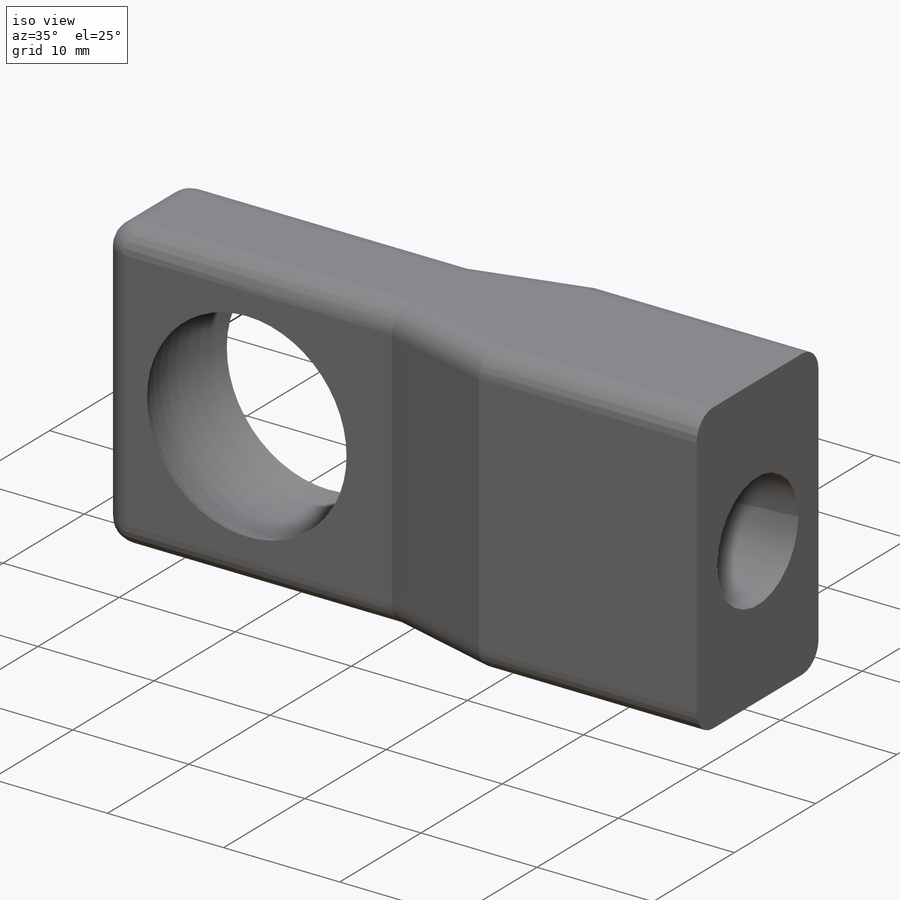
[diagram: iso view]
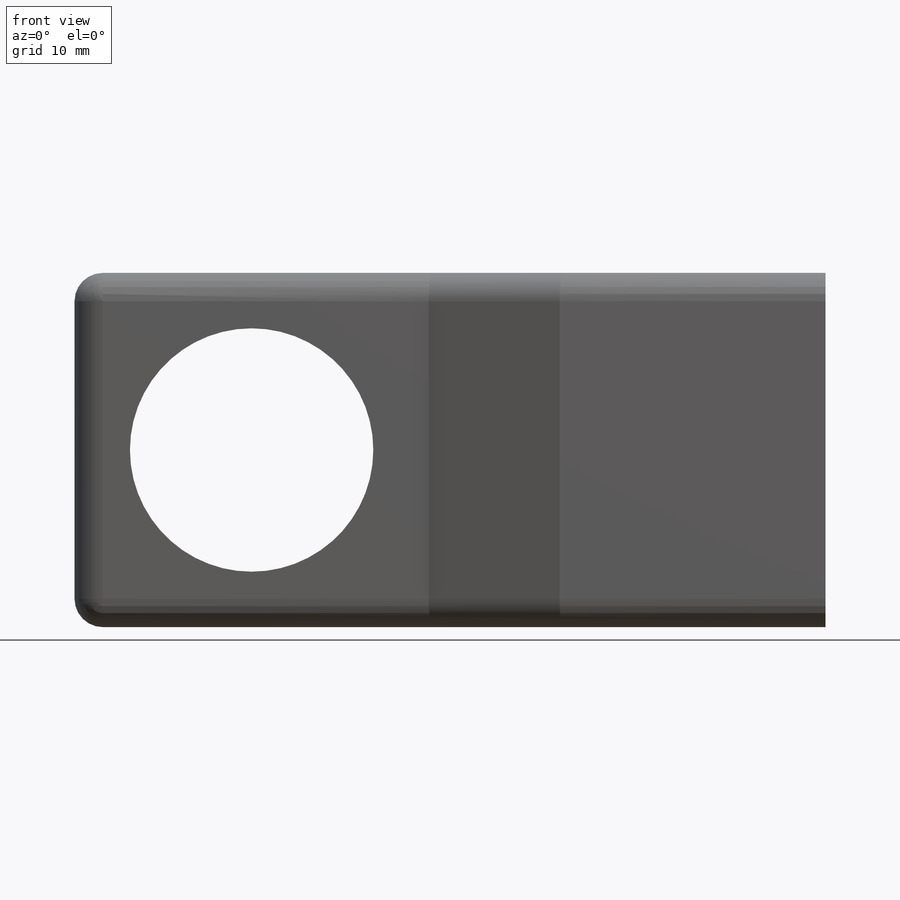
[diagram: front view]
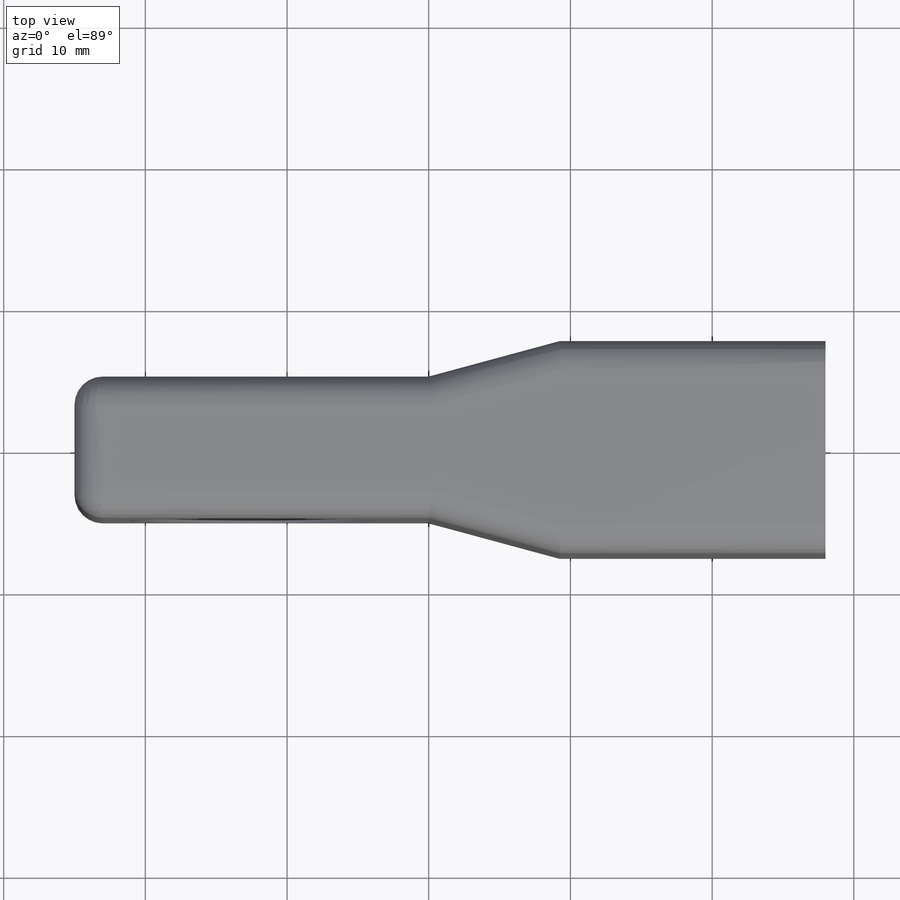
[diagram: top view]
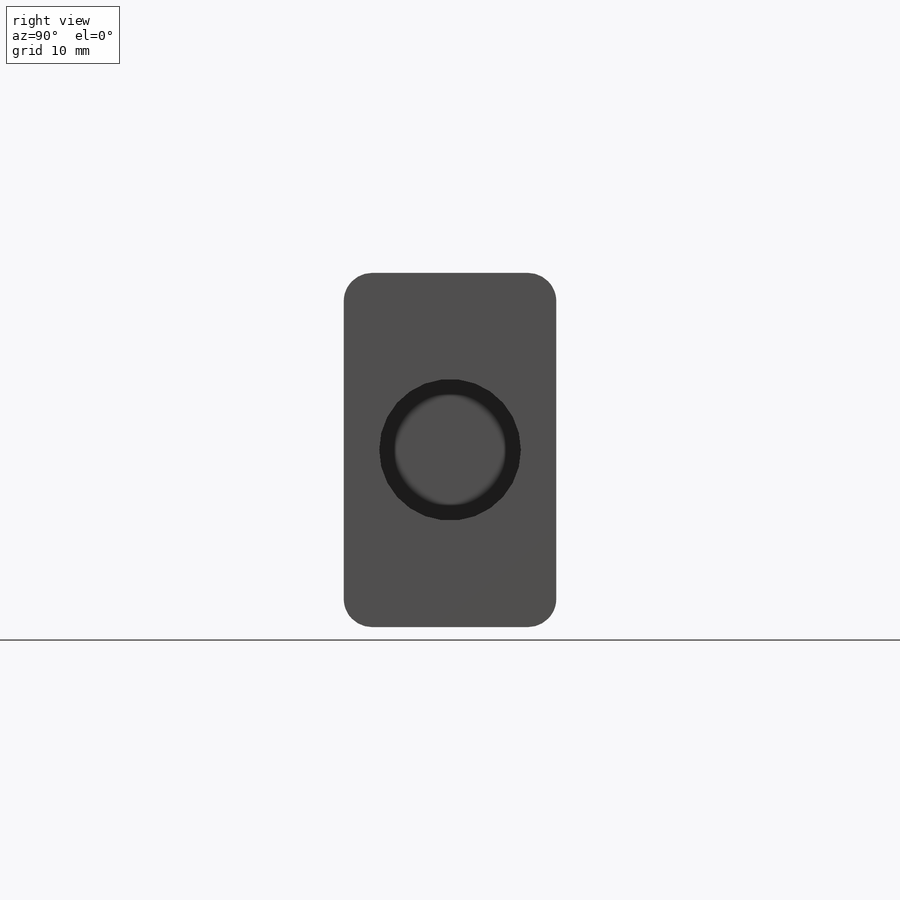
[diagram: right view]
SOLIDWORKS PART (.sldprt)
format: sldprt  version: not decoded by parser v0  size: 242,176 bytes
history: native  units: mm
features: sketch x3, fillet x3, material x1, extrude x1, cut_revolve x1, cut_extrude x1 (+13 scaffold rows collapsed)
feature tree (23):
  scaffold x13  (default folders/planes/origin — collapsed)
  material  "Material <not specified>"
  sketch  "Sketch2"  dims[c1.D1=25.0mm c1.D2=10.0mm c1.D3=28.0mm c1.D4=7.5mm c2.D3=53.0mm]
  extrude  "Boss-Extrude1"  Depth=25mm
  sketch  "Sketch3"  dims[D2=20.0mm D1=12.5mm]
  cut_revolve  "Cut-Revolve4"  Angle=360deg
  sketch  "Sketch4"  dims[D1=10.0mm]
  cut_extrude  "Cut-Extrude1"  Depth=20mm
  fillet  "Fillet2"  Radius=2mm
  fillet  "Fillet3"  Radius=2mm
  fillet  "Fillet4"  Radius=2mm
decode coverage: 9 of 9 modeling features carry decoded parameters
note: suppression state not decoded; provenance and decode notes live in map.json
